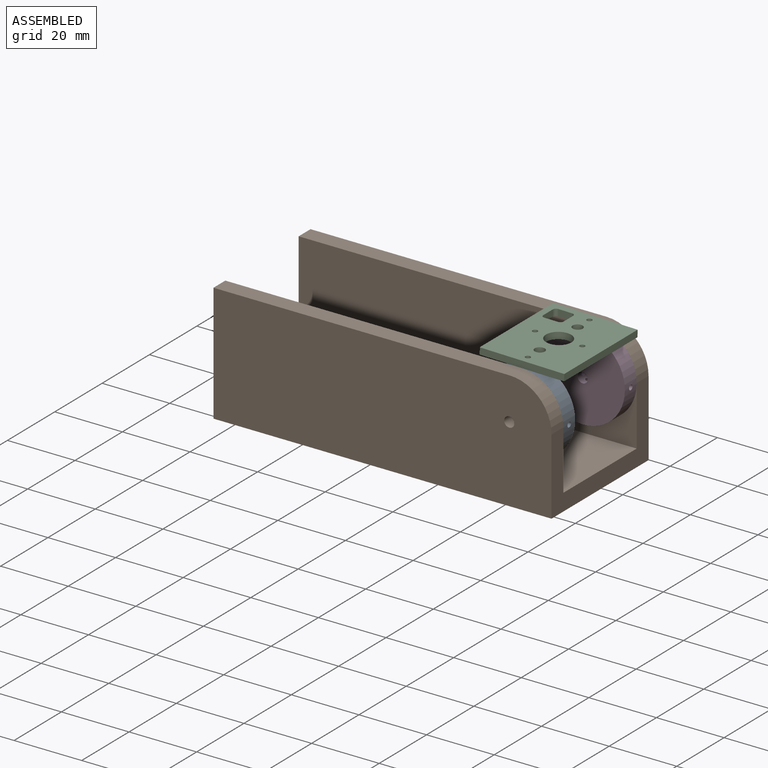
[diagram: assembled view]
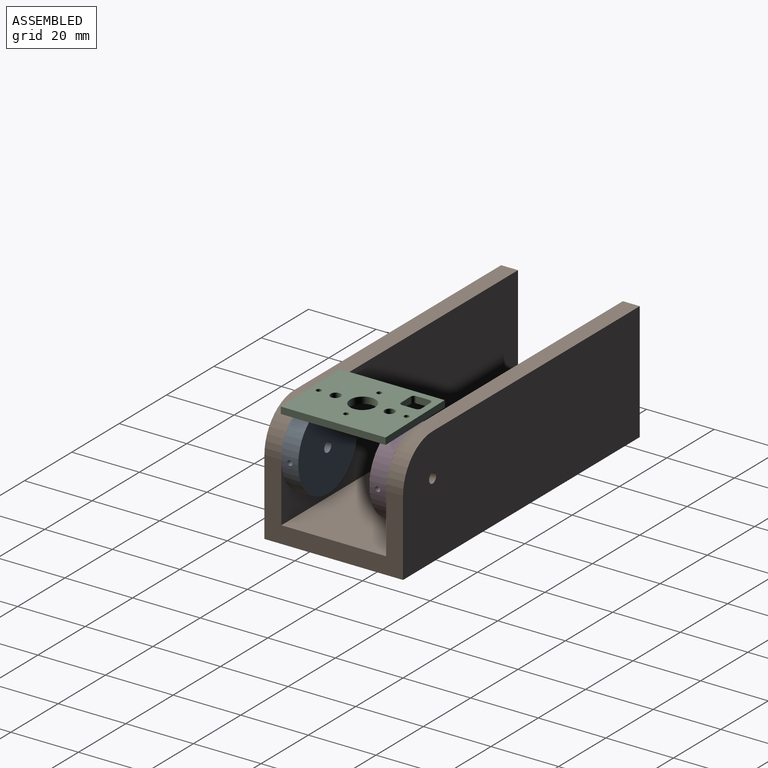
[diagram: assembled view, second angle]
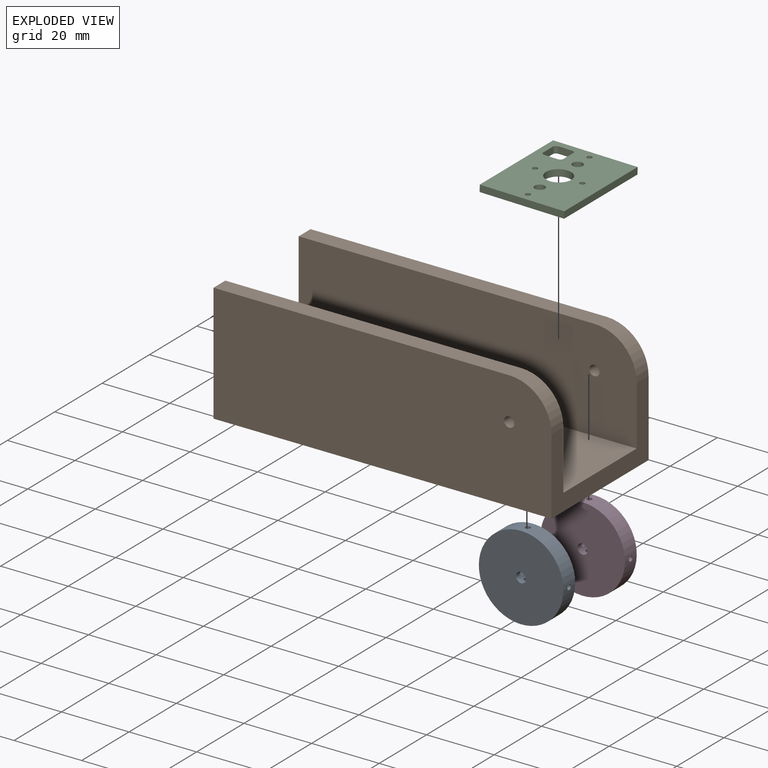
[diagram: exploded view]
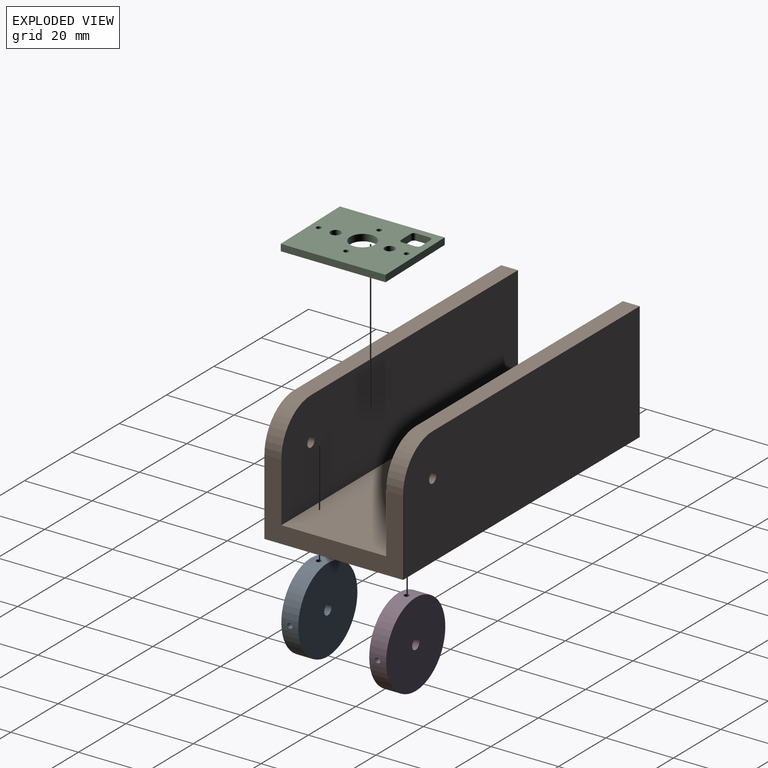
[diagram: exploded view, second angle]
ASSEMBLY  parts=4 mates=3
PART A: 8 faces, bbox 25x25x5 mm
  f0: cylinder r=1.5mm len=5mm, axis (0,0,-1), area 39.8mm2, adj f2,f3,f4,f5,f6,f7
  f1: cylinder r=12.5mm len=25mm, axis (0,0,-1), area 385.6mm2, adj f2,f3,f4,f5,f6,f7
  f2: plane 25x25mm, normal (0,0,1), area 483.8mm2, adj f0,f1
  f3: plane 25x25mm, normal (0,0,-1), area 483.8mm2, adj f0,f1
  f4: cylinder r=0.75mm len=11.2mm, axis (1,0,0), area 52.2mm2, adj f0,f1
  f5: cylinder r=0.75mm len=11.2mm, axis (1,0,0), area 52.2mm2, adj f0,f1
  f6: cylinder r=0.75mm len=11.2mm, axis (0,-1,0), area 52.2mm2, adj f0,f1
  f7: cylinder r=0.75mm len=11.2mm, axis (0,-1,0), area 52.2mm2, adj f0,f1
PART B: 14 faces, bbox 100x41x35 mm
  f0: plane 41x22.5mm, normal (-1,0,0), area 380mm2, adj f1,f4,f5,f7,f8,f9,f10,f11
  f1: plane 100x30mm, normal (0,-1,0), area 2959.4mm2, adj f0,f2,f3,f4,f11,f13
  f2: plane 41x35mm, normal (1,0,0), area 505mm2, adj f1,f3,f5,f6,f8,f9,f10,f11
  f3: plane 87.5x5mm, normal (0,0,1), area 437.5mm2, adj f1,f2,f4,f5
  f4: cylinder r=12.5mm len=12.5mm, axis (0,1,0), area 98.2mm2, adj f0,f1,f3,f5
  f5: plane 100x35mm, normal (0,1,0), area 3459.4mm2, adj f0,f2,f3,f4,f10,f13
  f6: plane 87.5x5mm, normal (0,0,1), area 437.5mm2, adj f2,f7,f8,f9
  f7: cylinder r=12.5mm len=12.5mm, axis (0,1,0), area 98.2mm2, adj f0,f6,f8,f9
  f8: plane 100x35mm, normal (0,-1,0), area 3459.4mm2, adj f0,f2,f6,f7,f10,f12
  f9: plane 100x30mm, normal (0,1,0), area 2959.4mm2, adj f0,f2,f6,f7,f11,f12
  f10: plane 100x41mm, normal (0,0,-1), area 4100mm2, adj f0,f2,f5,f8
  f11: plane 100x31mm, normal (0,0,1), area 3100mm2, adj f0,f1,f2,f9
  f12: cylinder r=1.5mm len=5mm, axis (0,1,0), area 47.1mm2, adj f8,f9
  f13: cylinder r=1.5mm len=5mm, axis (0,1,0), area 47.1mm2, adj f1,f5
PART C: 21 faces, bbox 31x25x2 mm
  f0: cylinder r=1mm len=2mm, axis (0,0,-1), area 3.1mm2, adj f1,f16,f17,f18
  f1: plane 4x2mm, normal (0,-1,0), area 8mm2, adj f0,f2,f17,f18
  f2: cylinder r=1mm len=2mm, axis (0,0,-1), area 3.1mm2, adj f1,f3,f17,f18
  f3: plane 4x2mm, normal (-1,0,0), area 8mm2, adj f2,f4,f17,f18
  f4: cylinder r=1mm len=2mm, axis (0,0,-1), area 3.1mm2, adj f3,f5,f17,f18
  f5: plane 4x2mm, normal (0,1,0), area 8mm2, adj f4,f6,f17,f18
  f6: cylinder r=1mm len=2mm, axis (0,0,-1), area 3.1mm2, adj f5,f16,f17,f18
  f7: plane 25x2mm, normal (1,0,0), area 50mm2, adj f8,f15,f17,f18
  f8: plane 31x2mm, normal (0,1,0), area 62mm2, adj f7,f9,f17,f18
  f9: plane 25x2mm, normal (-1,0,0), area 50mm2, adj f8,f15,f17,f18
  f10: cylinder r=1.5mm len=3mm, axis (0,0,-1), area 18.8mm2, adj f17,f18
  f11: cylinder r=0.75mm len=2mm, axis (0,0,-1), area 9.4mm2, adj f17,f18
  f12: cylinder r=1.5mm len=3mm, axis (0,0,-1), area 18.8mm2, adj f17,f18
  f13: cylinder r=3.75mm len=7.5mm, axis (0,0,-1), area 47.1mm2, adj f17,f18
  f14: cylinder r=0.75mm len=2mm, axis (0,0,-1), area 9.4mm2, adj f17,f18
  f15: plane 31x2mm, normal (0,-1,0), area 62mm2, adj f7,f9,f17,f18
  f16: plane 4x2mm, normal (1,0,0), area 8mm2, adj f0,f6,f17,f18
  f17: plane 31x25mm, normal (0,0,1), area 674.5mm2, adj f0,f1,f2,f3,f4,f5,f6,f7
  f18: plane 31x25mm, normal (0,0,-1), area 674.5mm2, adj f0,f1,f2,f3,f4,f5,f6,f7
  f19: cylinder r=0.75mm len=2mm, axis (0,0,1), area 9.4mm2, adj f17,f18
  f20: cylinder r=0.75mm len=2mm, axis (0,0,1), area 9.4mm2, adj f17,f18
PART D: same geometry as A
PLACE A rot(axis=(0.01,-0.71,0.71),179.3deg) t=(87.4,-17.06,0.15)mm
PLACE B rot(axis=(0,0,1),180deg) t=(99.9,-27.06,-12.35)mm fixed
PLACE C rot(axis=(-0.71,-0.71,0.01),179.3deg) t=(75.17,-22.06,14.95)mm
PLACE D rot(axis=(-1,0.01,0.01),90deg) t=(87.4,3.94,0.15)mm
MATE revolute A.f6 <-> C.f20  axis (0.02,0,1) through (87.63,-19.56,12.72)mm
MATE revolute D.f0 <-> B.f4  axis (0,1,0) through (87.4,8.94,0.15)mm
MATE fastened C.f19 <-> D.f6  axis (-0.02,0,-1) through (87.63,6.44,12.72)mm
